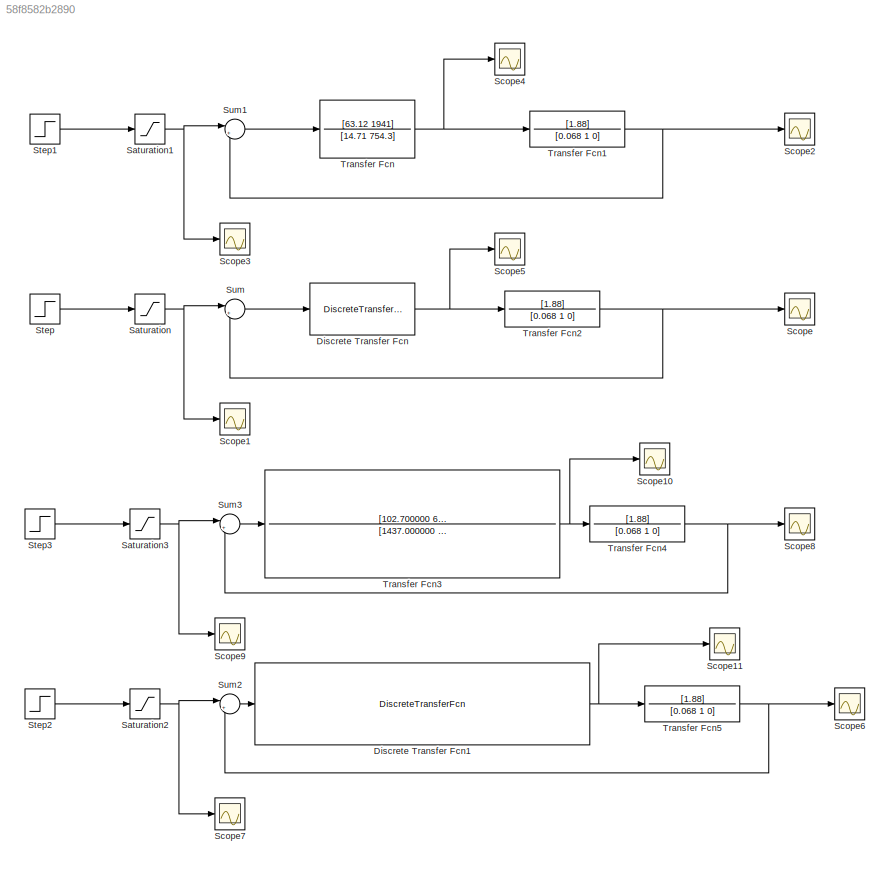
MODEL slx_58f8582b2890
KIND model
CONFIG AbsTol = auto
CONFIG EnableMultiTasking = off
CONFIG FixedStep = auto
CONFIG MaxStep = auto
CONFIG MinStep = auto
CONFIG RelTol = 1e-3
CONFIG SampleTimeConstraint = Unconstrained
CONFIG Solver = VariableStepAuto
CONFIG SolverName = VariableStepAuto
CONFIG StartTime = 0.0
CONFIG StopTime = 10.0
BLOCK [DiscreteTransferFcn] Discrete Transfer Fcn
  Denominator = [1 0.02448]
  InputPortMap = u0
  Numerator = [3.412 -0.7753]
  Ports = [1, 1]
  SampleTime = 0.040948
BLOCK [DiscreteTransferFcn] Discrete Transfer Fcn1
  Denominator = [1 -0.1333 0.03625]
  InputPortMap = u0
  Numerator = [2.619 1.281 -1.255]
  Ports = [1, 1]
  SampleTime = 0.029012
BLOCK [Saturate] Saturation
  InputPortMap = u0
  LowerLimit = -0.7
  Ports = [1, 1]
  UpperLimit = 0.7
BLOCK [Saturate] Saturation1
  InputPortMap = u0
  LowerLimit = -0.7
  Ports = [1, 1]
  UpperLimit = 0.7
BLOCK [Saturate] Saturation2
  InputPortMap = u0
  LowerLimit = -0.7
  Ports = [1, 1]
  UpperLimit = 0.7
BLOCK [Saturate] Saturation3
  InputPortMap = u0
  LowerLimit = -0.7
  Ports = [1, 1]
  UpperLimit = 0.7
BLOCK [Scope] Scope
  Floating = off
  NumInputPorts = 1
  Ports = [1]
  ScopeSpecificationString = Simulink.scopes.TimeScopeBlockCfg('CurrentConfiguration', extmgr.ConfigurationSet(extmgr.Configuration('Core','General UI',true),extmgr.Configuration('Core','Source UI',true),extmgr.Configuration('Sources','WiredSimulink',true),extmgr.Configuration('Visuals','Time Domain',true,'SerializedDisplays',{struct('MinYLimReal','-0.88142','MaxYLimReal','0.88611','YLabelReal','','MinYLimMag','0.00000','MaxY...<+1363ch>
BLOCK [Scope] Scope1
  Floating = off
  NumInputPorts = 1
  Ports = [1]
  ScopeSpecificationString = Simulink.scopes.TimeScopeBlockCfg('CurrentConfiguration', extmgr.ConfigurationSet(extmgr.Configuration('Core','General UI',true),extmgr.Configuration('Core','Source UI',true),extmgr.Configuration('Sources','WiredSimulink',true,'DataLoggingVariableName','ScopeData1'),extmgr.Configuration('Visuals','Time Domain',true,'SerializedDisplays',{struct('MinYLimReal','-0.875','MaxYLimReal','0.875','YLabelRe...<+1387ch>
BLOCK [Scope] Scope10
  Floating = off
  NumInputPorts = 1
  Ports = [1]
  ScopeSpecificationString = Simulink.scopes.TimeScopeBlockCfg('CurrentConfiguration', extmgr.ConfigurationSet(extmgr.Configuration('Core','General UI',true),extmgr.Configuration('Core','Source UI',true),extmgr.Configuration('Sources','WiredSimulink',true,'DataLoggingVariableName','ScopeData6'),extmgr.Configuration('Visuals','Time Domain',true,'SerializedDisplays',{struct('MinYLimReal','-3.7717','MaxYLimReal','6.49164','YLabe...<+1400ch>
BLOCK [Scope] Scope11
  Floating = off
  NumInputPorts = 1
  Ports = [1]
  ScopeSpecificationString = Simulink.scopes.TimeScopeBlockCfg('CurrentConfiguration', extmgr.ConfigurationSet(extmgr.Configuration('Core','General UI',true),extmgr.Configuration('Core','Source UI',true),extmgr.Configuration('Sources','WiredSimulink',true,'DataLoggingVariableName','ScopeData7'),extmgr.Configuration('Visuals','Time Domain',true,'SerializedDisplays',{struct('MinYLimReal','-4.02281','MaxYLimReal','6.94849','YLab...<+1410ch>
BLOCK [Scope] Scope2
  Floating = off
  NumInputPorts = 1
  Ports = [1]
  ScopeSpecificationString = Simulink.scopes.TimeScopeBlockCfg('CurrentConfiguration', extmgr.ConfigurationSet(extmgr.Configuration('Core','General UI',true),extmgr.Configuration('Core','Source UI',true),extmgr.Configuration('Sources','WiredSimulink',true,'DataLoggingVariableName','ScopeData2'),extmgr.Configuration('Visuals','Time Domain',true,'SerializedDisplays',{struct('MinYLimReal','-0.875','MaxYLimReal','0.875','YLabelRe...<+1390ch>
BLOCK [Scope] Scope3
  Floating = off
  NumInputPorts = 1
  Ports = [1]
  ScopeSpecificationString = Simulink.scopes.TimeScopeBlockCfg('CurrentConfiguration', extmgr.ConfigurationSet(extmgr.Configuration('Core','General UI',true),extmgr.Configuration('Core','Source UI',true),extmgr.Configuration('Sources','WiredSimulink',true,'DataLoggingVariableName','ScopeData3'),extmgr.Configuration('Visuals','Time Domain',true,'SerializedDisplays',{struct('MinYLimReal','-0.875','MaxYLimReal','0.875','YLabelRe...<+1387ch>
BLOCK [Scope] Scope4
  Floating = off
  NumInputPorts = 1
  Ports = [1]
  ScopeSpecificationString = Simulink.scopes.TimeScopeBlockCfg('CurrentConfiguration', extmgr.ConfigurationSet(extmgr.Configuration('Core','General UI',true),extmgr.Configuration('Core','Source UI',true),extmgr.Configuration('Sources','WiredSimulink',true,'DataLoggingVariableName','ScopeData4'),extmgr.Configuration('Visuals','Time Domain',true,'SerializedDisplays',{struct('MinYLimReal','-4.13005','MaxYLimReal','7.13372','YLab...<+1401ch>
BLOCK [Scope] Scope5
  Floating = off
  NumInputPorts = 1
  Ports = [1]
  ScopeSpecificationString = Simulink.scopes.TimeScopeBlockCfg('CurrentConfiguration', extmgr.ConfigurationSet(extmgr.Configuration('Core','General UI',true),extmgr.Configuration('Core','Source UI',true),extmgr.Configuration('Sources','WiredSimulink',true,'DataLoggingVariableName','ScopeData5'),extmgr.Configuration('Visuals','Time Domain',true,'SerializedDisplays',{struct('MinYLimReal','-3.28405','MaxYLimReal','5.67245','YLab...<+1410ch>
BLOCK [Scope] Scope6
  Floating = off
  NumInputPorts = 1
  Ports = [1]
  ScopeSpecificationString = Simulink.scopes.TimeScopeBlockCfg('CurrentConfiguration', extmgr.ConfigurationSet(extmgr.Configuration('Core','General UI',true),extmgr.Configuration('Core','Source UI',true),extmgr.Configuration('Sources','WiredSimulink',true,'DataLoggingVariableName','ScopeData8'),extmgr.Configuration('Visuals','Time Domain',true,'SerializedDisplays',{struct('MinYLimReal','-0.88514','MaxYLimReal','0.89248','YLab...<+1402ch>
BLOCK [Scope] Scope7
  Floating = off
  NumInputPorts = 1
  Ports = [1]
  ScopeSpecificationString = Simulink.scopes.TimeScopeBlockCfg('CurrentConfiguration', extmgr.ConfigurationSet(extmgr.Configuration('Core','General UI',true),extmgr.Configuration('Core','Source UI',true),extmgr.Configuration('Sources','WiredSimulink',true,'DataLoggingVariableName','ScopeData9'),extmgr.Configuration('Visuals','Time Domain',true,'SerializedDisplays',{struct('MinYLimReal','-0.875','MaxYLimReal','0.875','YLabelRe...<+1388ch>
BLOCK [Scope] Scope8
  Floating = off
  NumInputPorts = 1
  Ports = [1]
  ScopeSpecificationString = Simulink.scopes.TimeScopeBlockCfg('CurrentConfiguration', extmgr.ConfigurationSet(extmgr.Configuration('Core','General UI',true),extmgr.Configuration('Core','Source UI',true),extmgr.Configuration('Sources','WiredSimulink',true,'DataLoggingVariableName','ScopeData10'),extmgr.Configuration('Visuals','Time Domain',true,'SerializedDisplays',{struct('MinYLimReal','-0.87692','MaxYLimReal','0.87831','YLa...<+1403ch>
BLOCK [Scope] Scope9
  Floating = off
  NumInputPorts = 1
  Ports = [1]
  ScopeSpecificationString = Simulink.scopes.TimeScopeBlockCfg('CurrentConfiguration', extmgr.ConfigurationSet(extmgr.Configuration('Core','General UI',true),extmgr.Configuration('Core','Source UI',true),extmgr.Configuration('Sources','WiredSimulink',true,'DataLoggingVariableName','ScopeData11'),extmgr.Configuration('Visuals','Time Domain',true,'SerializedDisplays',{struct('MinYLimReal','-0.875','MaxYLimReal','0.875','YLabelR...<+1388ch>
BLOCK [Step] Step
  After = 0.7
  Before = -0.7
  SampleTime = 0
  Time = 5
BLOCK [Step] Step1
  After = 0.7
  Before = -0.7
  SampleTime = 0
  Time = 5
BLOCK [Step] Step2
  After = 0.7
  Before = -0.7
  SampleTime = 0
  Time = 5
BLOCK [Step] Step3
  After = 0.7
  Before = -0.7
  SampleTime = 0
  Time = 5
BLOCK [Sum] Sum
  IconShape = round
  InputSameDT = off
  Inputs = |+-
  OutDataTypeStr = Inherit: Inherit via internal rule
  Ports = [2, 1]
  SaturateOnIntegerOverflow = off
BLOCK [Sum] Sum1
  IconShape = round
  InputSameDT = off
  Inputs = |+-
  OutDataTypeStr = Inherit: Inherit via internal rule
  Ports = [2, 1]
  SaturateOnIntegerOverflow = off
BLOCK [Sum] Sum2
  IconShape = round
  InputSameDT = off
  Inputs = |+-
  OutDataTypeStr = Inherit: Inherit via internal rule
  Ports = [2, 1]
  SaturateOnIntegerOverflow = off
BLOCK [Sum] Sum3
  IconShape = round
  InputSameDT = off
  Inputs = |+-
  OutDataTypeStr = Inherit: Inherit via internal rule
  Ports = [2, 1]
  SaturateOnIntegerOverflow = off
BLOCK [TransferFcn] Transfer Fcn
  Denominator = [14.71 754.3]
  Numerator = [63.12 1941]
BLOCK [TransferFcn] Transfer Fcn1
  Denominator = [0.068 1 0]
  Numerator = [1.88]
BLOCK [TransferFcn] Transfer Fcn2
  Denominator = [0.068 1 0]
  Numerator = [1.88]
BLOCK [TransferFcn] Transfer Fcn3
  Denominator = [1437.000000 163200.000000 5270000.000000]
  Numerator = [102.700000 656100.000000 15440000.000000]
BLOCK [TransferFcn] Transfer Fcn4
  Denominator = [0.068 1 0]
  Numerator = [1.88]
BLOCK [TransferFcn] Transfer Fcn5
  Denominator = [0.068 1 0]
  Numerator = [1.88]
NET Discrete Transfer Fcn1:1 -> Scope11:1, Transfer Fcn5:1
NET Discrete Transfer Fcn:1 -> Scope5:1, Transfer Fcn2:1
NET Saturation1:1 -> Scope3:1, Sum1:1
NET Saturation2:1 -> Scope7:1, Sum2:1
NET Saturation3:1 -> Scope9:1, Sum3:1
NET Saturation:1 -> Scope1:1, Sum:1
LINE Step1:1 -> Saturation1:1
LINE Step2:1 -> Saturation2:1
LINE Step3:1 -> Saturation3:1
LINE Step:1 -> Saturation:1
LINE Sum1:1 -> Transfer Fcn:1
LINE Sum2:1 -> Discrete Transfer Fcn1:1
LINE Sum3:1 -> Transfer Fcn3:1
LINE Sum:1 -> Discrete Transfer Fcn:1
NET Transfer Fcn1:1 -> Scope2:1, Sum1:2
NET Transfer Fcn2:1 -> Scope:1, Sum:2
NET Transfer Fcn3:1 -> Scope10:1, Transfer Fcn4:1
NET Transfer Fcn4:1 -> Scope8:1, Sum3:2
NET Transfer Fcn5:1 -> Scope6:1, Sum2:2
NET Transfer Fcn:1 -> Scope4:1, Transfer Fcn1:1
note: NET lines group one-source signal fan-out (src -> all destinations, sorted); 1:1 wires keep LINE
